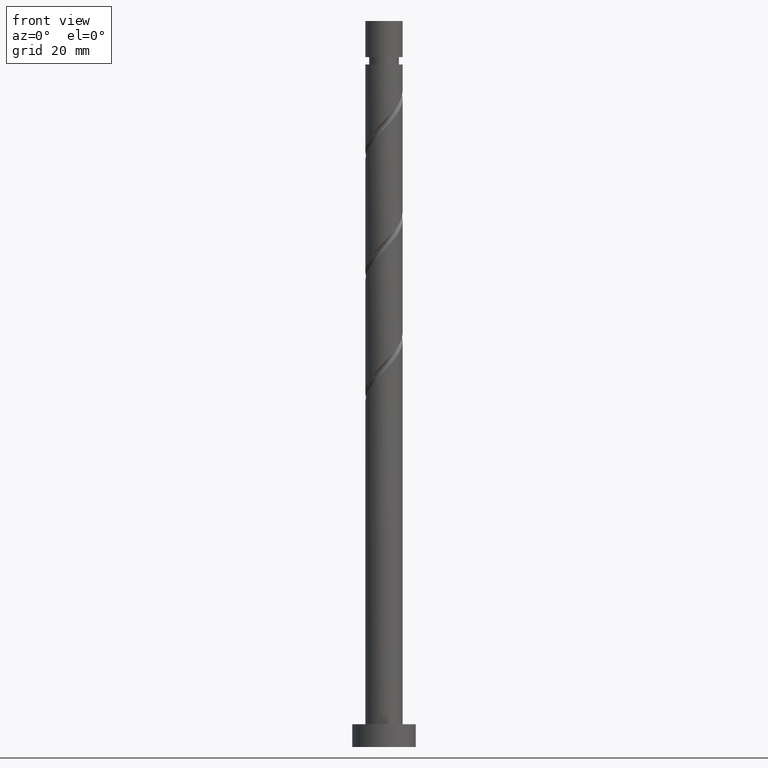
[diagram: clean part render]
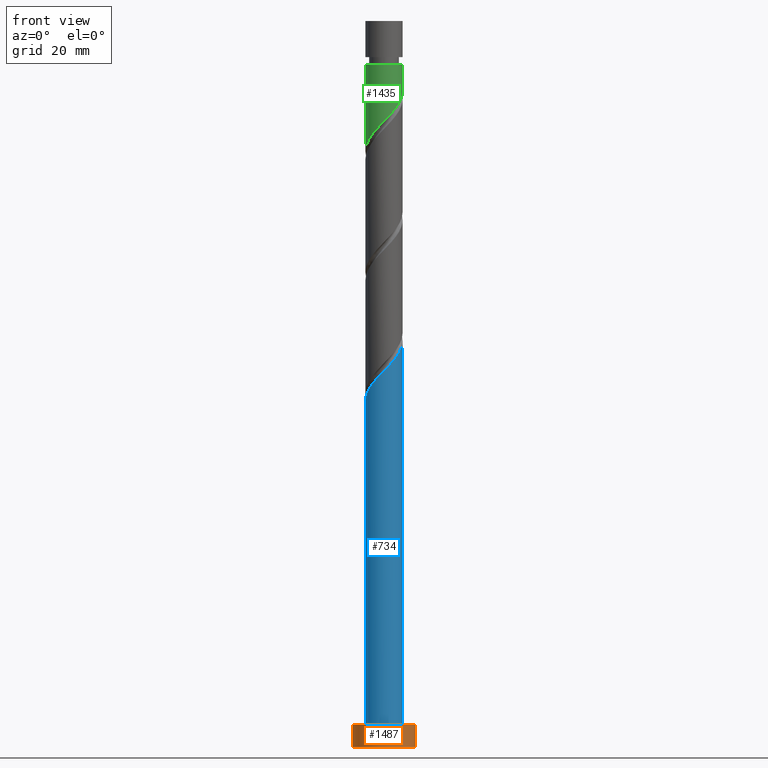
[diagram: same view with three faces highlighted in distinct colors, each labeled with its STEP entity id]
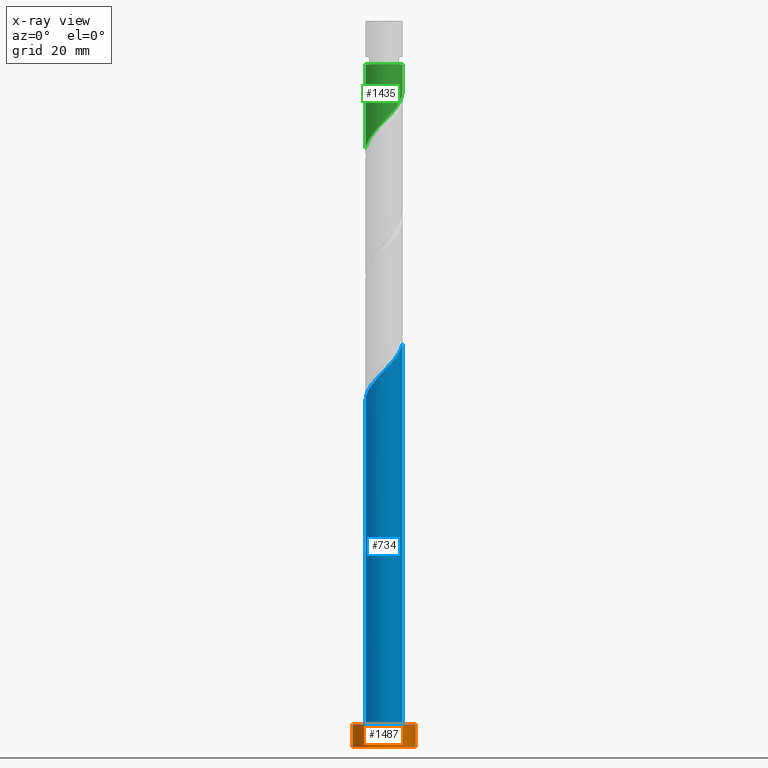
[diagram: x-ray of the same camera — body ghosted, the three highlighted faces saturated]
A machine part, front view with three faces highlighted in distinct colors.
The next image is the same camera in x-ray (body ghosted, the three faces saturated) — at least one of them is partly hidden behind the body in this view.
Their STEP definitions:

[orange] entity #1487 — the highlighted cylindrical surface (edge-blend (fillet) strip) has radius 7 mm, axis along (-0, -0, -1).
#3 = DIRECTION ( 'NONE',  ( -1.000000000000000000, 0.000000000000000000, 0.000000000000000000 ) ) ;
#36 = EDGE_CURVE ( 'NONE', #504, #76, #1440, .T. ) ;
#62 = ORIENTED_EDGE ( 'NONE', *, *, #1180, .T. ) ;
#68 = AXIS2_PLACEMENT_3D ( 'NONE', #96, #224, #1641 ) ;
#76 = VERTEX_POINT ( 'NONE', #1046 ) ;
#96 = CARTESIAN_POINT ( 'NONE',  ( 0.000000000000000000, 0.000000000000000000, 0.000000000000000000 ) ) ;
#174 = EDGE_CURVE ( 'NONE', #629, #332, #1523, .T. ) ;
#201 = CARTESIAN_POINT ( 'NONE',  ( -7.000000000000000000, 0.000000000000000000, 5.000000000000000000 ) ) ;
#224 = DIRECTION ( 'NONE',  ( 0.000000000000000000, 0.000000000000000000, 1.000000000000000000 ) ) ;
#228 = CARTESIAN_POINT ( 'NONE',  ( -7.000000000000000000, 0.000000000000000000, 0.000000000000000000 ) ) ;
#298 = LINE ( 'NONE', #201, #926 ) ;
#332 = VERTEX_POINT ( 'NONE', #802 ) ;
#371 = ORIENTED_EDGE ( 'NONE', *, *, #36, .F. ) ;
#419 = CARTESIAN_POINT ( 'NONE',  ( 0.000000000000000000, 0.000000000000000000, 5.000000000000000000 ) ) ;
#504 = VERTEX_POINT ( 'NONE', #1193 ) ;
#519 = CYLINDRICAL_SURFACE ( 'NONE', #1267, 7.000000000000000000 ) ;
#552 = VECTOR ( 'NONE', #1154, 1000.000000000000000 ) ;
#629 = VERTEX_POINT ( 'NONE', #228 ) ;
#755 = CARTESIAN_POINT ( 'NONE',  ( 7.000000000000000000, 8.572527594031473190E-16, 5.000000000000000000 ) ) ;
#802 = CARTESIAN_POINT ( 'NONE',  ( 7.000000000000000000, 8.572527594031473190E-16, 0.000000000000000000 ) ) ;
#887 = FACE_OUTER_BOUND ( 'NONE', #981, .T. ) ;
#898 = LINE ( 'NONE', #755, #552 ) ;
#925 = CARTESIAN_POINT ( 'NONE',  ( 0.000000000000000000, 0.000000000000000000, 5.000000000000000000 ) ) ;
#926 = VECTOR ( 'NONE', #1460, 1000.000000000000000 ) ;
#931 = DIRECTION ( 'NONE',  ( 1.000000000000000000, 0.000000000000000000, 0.000000000000000000 ) ) ;
#981 = EDGE_LOOP ( 'NONE', ( #1496, #371, #62, #1194 ) ) ;
#1046 = CARTESIAN_POINT ( 'NONE',  ( 7.000000000000000000, 8.572527594031473190E-16, 5.000000000000000000 ) ) ;
#1053 = AXIS2_PLACEMENT_3D ( 'NONE', #419, #1448, #931 ) ;
#1154 = DIRECTION ( 'NONE',  ( -0.000000000000000000, -0.000000000000000000, -1.000000000000000000 ) ) ;
#1180 = EDGE_CURVE ( 'NONE', #504, #629, #298, .T. ) ;
#1193 = CARTESIAN_POINT ( 'NONE',  ( -7.000000000000000000, 0.000000000000000000, 5.000000000000000000 ) ) ;
#1194 = ORIENTED_EDGE ( 'NONE', *, *, #174, .T. ) ;
#1267 = AXIS2_PLACEMENT_3D ( 'NONE', #925, #1538, #3 ) ;
#1440 = CIRCLE ( 'NONE', #1053, 7.000000000000000000 ) ;
#1448 = DIRECTION ( 'NONE',  ( 0.000000000000000000, 0.000000000000000000, 1.000000000000000000 ) ) ;
#1460 = DIRECTION ( 'NONE',  ( -0.000000000000000000, -0.000000000000000000, -1.000000000000000000 ) ) ;
#1487 = ADVANCED_FACE ( 'NONE', ( #887 ), #519, .T. ) ;
#1496 = ORIENTED_EDGE ( 'NONE', *, *, #1561, .F. ) ;
#1523 = CIRCLE ( 'NONE', #68, 7.000000000000000000 ) ;
#1538 = DIRECTION ( 'NONE',  ( -0.000000000000000000, -0.000000000000000000, -1.000000000000000000 ) ) ;
#1561 = EDGE_CURVE ( 'NONE', #76, #332, #898, .T. ) ;
#1641 = DIRECTION ( 'NONE',  ( 1.000000000000000000, 0.000000000000000000, 0.000000000000000000 ) ) ;

[blue] entity #734 — the highlighted cylindrical surface (edge-blend (fillet) strip) has radius 4.1 mm, axis along (-0, -0, -1).
#11 =( BOUNDED_CURVE ( )  B_SPLINE_CURVE ( 2, ( #890, #1558, #910, #1176, #30, #544, #1574, #1406, #414, #800, #1312, #169, #1476, #431, #56, #1580, #589, #191, #963, #1469, #688, #177, #1341, #718, #551 ),
 .UNSPECIFIED., .F., .T. ) 
 B_SPLINE_CURVE_WITH_KNOTS ( ( 3, 2, 2, 2, 2, 2, 2, 2, 2, 2, 2, 2, 3 ),
 ( 0.05452521624175116211, 0.05681818181818176772, 0.06818181818181823228, 0.07954545454545458583, 0.09090909090909093937, 0.1022727272727272929, 0.1136363636363636465, 0.1250000000000000000, 0.1363636363636363535, 0.1477272727272727071, 0.1590909090909090606, 0.1704545454545454142, 0.1795252162417512731 ),
 .UNSPECIFIED. ) 
 CURVE ( )  GEOMETRIC_REPRESENTATION_ITEM ( )  RATIONAL_B_SPLINE_CURVE ( ( 0.9061101570135606798, 0.9072237824201428991, 0.9090909090909204959, 0.8998376744372229563, 0.9090909090909204959, 0.8998376744372229563, 0.9090909090909204959, 0.8998376744372229563, 0.9090909090909204959, 0.8998376744372229563, 0.9090909090909204959, 0.8998376744372229563, 0.9090909090909204959, 0.8998376744372229563, 0.9090909090909204959, 0.8998376744372229563, 0.9090909090909204959, 0.8998376744372229563, 0.9090909090909204959, 0.8998376744372229563, 0.9090909090909204959, 0.8998376744372229563, 0.9090909090909204959, 0.9017048011080004422, 0.9061101570135609018 ) ) 
 REPRESENTATION_ITEM ( '' )  );
#30 = CARTESIAN_POINT ( 'NONE',  ( -3.860989342997054319, -1.379406137895296647, 77.68101214099381480 ) ) ;
#56 = CARTESIAN_POINT ( 'NONE',  ( 0.8158896984274283115, -4.018000000000004235, 83.74161820159990555 ) ) ;
#91 = DIRECTION ( 'NONE',  ( -0.000000000000000000, -0.000000000000000000, -1.000000000000000000 ) ) ;
#162 = VERTEX_POINT ( 'NONE', #845 ) ;
#169 = CARTESIAN_POINT ( 'NONE',  ( -0.9365104741622179985, -4.034903688715220760, 81.92343638341807832 ) ) ;
#177 = CARTESIAN_POINT ( 'NONE',  ( 3.860554850343161259, -1.501204813779630332, 87.98404244402411223 ) ) ;
#189 = ORIENTED_EDGE ( 'NONE', *, *, #984, .F. ) ;
#191 = CARTESIAN_POINT ( 'NONE',  ( 2.436092808849637859, -3.350067383216988492, 85.55980001978171856 ) ) ;
#255 = DIRECTION ( 'NONE',  ( -1.000000000000000000, 0.000000000000000000, 0.000000000000000000 ) ) ;
#283 = CYLINDRICAL_SURFACE ( 'NONE', #495, 4.099999999999999645 ) ;
#321 = LINE ( 'NONE', #1333, #1527 ) ;
#412 = CIRCLE ( 'NONE', #1352, 4.099999999999999645 ) ;
#414 = CARTESIAN_POINT ( 'NONE',  ( -2.502307663024829765, -3.247838721298710762, 80.10525456523626531 ) ) ;
#431 = CARTESIAN_POINT ( 'NONE',  ( 0.2381885131556253921, -4.135307228927973533, 83.13555759553926805 ) ) ;
#449 = VERTEX_POINT ( 'NONE', #1454 ) ;
#458 = CARTESIAN_POINT ( 'NONE',  ( 4.099999999999999645, 5.021051876504147385E-16, 5.000000000000000000 ) ) ;
#468 = ORIENTED_EDGE ( 'NONE', *, *, #1125, .T. ) ;
#484 = LINE ( 'NONE', #1513, #791 ) ;
#495 = AXIS2_PLACEMENT_3D ( 'NONE', #1166, #919, #255 ) ;
#544 = CARTESIAN_POINT ( 'NONE',  ( -3.662660681764272397, -1.934532598764186373, 78.28707274705443808 ) ) ;
#551 = CARTESIAN_POINT ( 'NONE',  ( 4.100000000000004974, 2.348220850448935583E-15, 89.55883038896567427 ) ) ;
#589 = CARTESIAN_POINT ( 'NONE',  ( 1.914841846274433879, -3.625380077144512825, 84.95373941372108106 ) ) ;
#685 = EDGE_CURVE ( 'NONE', #162, #1028, #412, .T. ) ;
#688 = CARTESIAN_POINT ( 'NONE',  ( 3.570895916485996135, -2.014622136685605192, 87.37798183796353158 ) ) ;
#718 = CARTESIAN_POINT ( 'NONE',  ( 4.100000000000004086, -0.4695686022790059866, 89.07287043599436061 ) ) ;
#728 = CARTESIAN_POINT ( 'NONE',  ( 0.000000000000000000, 0.000000000000000000, 5.000000000000000000 ) ) ;
#733 = CARTESIAN_POINT ( 'NONE',  ( 4.100000000000004974, 2.348220850448935583E-15, 89.55883038896567427 ) ) ;
#734 = ADVANCED_FACE ( 'NONE', ( #1549 ), #283, .T. ) ;
#791 = VECTOR ( 'NONE', #91, 1000.000000000000000 ) ;
#800 = CARTESIAN_POINT ( 'NONE',  ( -2.035338952505686194, -3.607616248138969528, 80.71131517129684596 ) ) ;
#821 = ORIENTED_EDGE ( 'NONE', *, *, #685, .T. ) ;
#845 = CARTESIAN_POINT ( 'NONE',  ( -4.099999999999999645, 0.000000000000000000, 5.000000000000000000 ) ) ;
#890 = CARTESIAN_POINT ( 'NONE',  ( -4.100000000000004974, -2.497789057483899821E-15, 76.22549705563235989 ) ) ;
#910 = CARTESIAN_POINT ( 'NONE',  ( -4.093215763958131248, -0.2357640975311769138, 76.46889092887259665 ) ) ;
#919 = DIRECTION ( 'NONE',  ( -0.000000000000000000, -0.000000000000000000, -1.000000000000000000 ) ) ;
#963 = CARTESIAN_POINT ( 'NONE',  ( 2.858664895739234879, -2.939053421404283384, 86.16586062584231342 ) ) ;
#984 = EDGE_CURVE ( 'NONE', #449, #1353, #11, .T. ) ;
#990 = DIRECTION ( 'NONE',  ( 0.000000000000000000, 0.000000000000000000, 1.000000000000000000 ) ) ;
#1028 = VERTEX_POINT ( 'NONE', #458 ) ;
#1117 = DIRECTION ( 'NONE',  ( 1.000000000000000000, 0.000000000000000000, 0.000000000000000000 ) ) ;
#1125 = EDGE_CURVE ( 'NONE', #449, #162, #321, .T. ) ;
#1166 = CARTESIAN_POINT ( 'NONE',  ( 0.000000000000000000, 0.000000000000000000, 160.0000000000000000 ) ) ;
#1176 = CARTESIAN_POINT ( 'NONE',  ( -4.059318004229832688, -0.8242796770264076978, 77.07495153493323414 ) ) ;
#1259 = EDGE_LOOP ( 'NONE', ( #1313, #189, #468, #821 ) ) ;
#1312 = CARTESIAN_POINT ( 'NONE',  ( -1.485924713333952374, -3.821259968427094478, 81.31737577735746925 ) ) ;
#1313 = ORIENTED_EDGE ( 'NONE', *, *, #1330, .F. ) ;
#1330 = EDGE_CURVE ( 'NONE', #1353, #1028, #484, .T. ) ;
#1333 = CARTESIAN_POINT ( 'NONE',  ( -4.099999999999999645, 0.000000000000000000, 160.0000000000000000 ) ) ;
#1341 = CARTESIAN_POINT ( 'NONE',  ( 3.993834187014794868, -0.9269781478718425172, 88.59010305008473551 ) ) ;
#1347 = DIRECTION ( 'NONE',  ( -0.000000000000000000, -0.000000000000000000, -1.000000000000000000 ) ) ;
#1352 = AXIS2_PLACEMENT_3D ( 'NONE', #728, #990, #1117 ) ;
#1353 = VERTEX_POINT ( 'NONE', #733 ) ;
#1406 = CARTESIAN_POINT ( 'NONE',  ( -2.969276373543973335, -2.888061194458452885, 79.49919395917569886 ) ) ;
#1454 = CARTESIAN_POINT ( 'NONE',  ( -4.100000000000004974, -2.497789057483899821E-15, 76.22549705563234568 ) ) ;
#1469 = CARTESIAN_POINT ( 'NONE',  ( 3.281236982628831456, -2.528039459591578275, 86.77192123190292250 ) ) ;
#1476 = CARTESIAN_POINT ( 'NONE',  ( -0.3491609805032963032, -4.085105458821597146, 82.52949698947868740 ) ) ;
#1513 = CARTESIAN_POINT ( 'NONE',  ( 4.099999999999999645, 5.021051876504147385E-16, 160.0000000000000000 ) ) ;
#1527 = VECTOR ( 'NONE', #1347, 1000.000000000000000 ) ;
#1549 = FACE_OUTER_BOUND ( 'NONE', #1259, .T. ) ;
#1558 = CARTESIAN_POINT ( 'NONE',  ( -4.100000000000005862, -0.1179796587476645287, 76.34759506035055665 ) ) ;
#1574 = CARTESIAN_POINT ( 'NONE',  ( -3.315968527654123754, -2.411296896611319962, 78.89313335311503295 ) ) ;
#1580 = CARTESIAN_POINT ( 'NONE',  ( 1.393590883699231009, -3.900692771072035825, 84.34767880766050041 ) ) ;

[green] entity #1435 — the highlighted cylindrical surface (edge-blend (fillet) strip) has radius 4.1 mm, axis along (-0, -0, -1).
#7 = CARTESIAN_POINT ( 'NONE',  ( 4.100000000000000533, 1.435854787535663787E-15, 144.5910726809008224 ) ) ;
#113 = VERTEX_POINT ( 'NONE', #1118 ) ;
#116 = EDGE_CURVE ( 'NONE', #113, #1348, #481, .T. ) ;
#120 = DIRECTION ( 'NONE',  ( -0.000000000000000000, -0.000000000000000000, -1.000000000000000000 ) ) ;
#122 = AXIS2_PLACEMENT_3D ( 'NONE', #534, #120, #147 ) ;
#135 = CARTESIAN_POINT ( 'NONE',  ( 3.860989342997047213, -1.379406137895296425, 143.1355575955392965 ) ) ;
#147 = DIRECTION ( 'NONE',  ( -1.000000000000000000, 0.000000000000000000, 0.000000000000000000 ) ) ;
#153 = CARTESIAN_POINT ( 'NONE',  ( 0.9365104741622172213, -4.034903688715216319, 138.8931333531150756 ) ) ;
#172 = CARTESIAN_POINT ( 'NONE',  ( 0.3491609805032941383, -4.085105458821592705, 138.2870727470544239 ) ) ;
#215 = EDGE_CURVE ( 'NONE', #1553, #1348, #1452, .T. ) ;
#246 = DIRECTION ( 'NONE',  ( -1.000000000000000000, 0.000000000000000000, 0.000000000000000000 ) ) ;
#257 = CARTESIAN_POINT ( 'NONE',  ( 4.100000000000000533, -0.1179796587476745762, 144.4689746761825972 ) ) ;
#258 = ORIENTED_EDGE ( 'NONE', *, *, #1269, .T. ) ;
#286 = CARTESIAN_POINT ( 'NONE',  ( -1.914841846274432990, -3.625380077144507496, 135.8628303228119876 ) ) ;
#293 = CARTESIAN_POINT ( 'NONE',  ( 4.093215763958126807, -0.2357640975311781073, 144.3476788076605430 ) ) ;
#309 = VECTOR ( 'NONE', #617, 1000.000000000000000 ) ;
#346 = CARTESIAN_POINT ( 'NONE',  ( -4.099999999999999645, 0.000000000000000000, 160.0000000000000000 ) ) ;
#353 = LINE ( 'NONE', #983, #309 ) ;
#374 = CYLINDRICAL_SURFACE ( 'NONE', #122, 4.099999999999999645 ) ;
#418 = CARTESIAN_POINT ( 'NONE',  ( -2.858664895739232215, -2.939053421404278943, 134.6507091106908263 ) ) ;
#475 = CARTESIAN_POINT ( 'NONE',  ( -4.100000000000000533, -2.228566284820977997E-15, 131.2577393475674228 ) ) ;
#481 = LINE ( 'NONE', #346, #971 ) ;
#524 = CARTESIAN_POINT ( 'NONE',  ( -3.993834187014790871, -0.9269781478718408518, 132.2264666864483900 ) ) ;
#534 = CARTESIAN_POINT ( 'NONE',  ( 0.000000000000000000, 0.000000000000000000, 160.0000000000000000 ) ) ;
#539 = CARTESIAN_POINT ( 'NONE',  ( -2.436092808849634750, -3.350067383216984940, 135.2567697167514211 ) ) ;
#603 = ORIENTED_EDGE ( 'NONE', *, *, #215, .F. ) ;
#617 = DIRECTION ( 'NONE',  ( -0.000000000000000000, -0.000000000000000000, -1.000000000000000000 ) ) ;
#634 = EDGE_CURVE ( 'NONE', #1407, #1553, #353, .T. ) ;
#651 = CARTESIAN_POINT ( 'NONE',  ( 2.969276373543970671, -2.888061194458449776, 141.3173757773574835 ) ) ;
#665 = AXIS2_PLACEMENT_3D ( 'NONE', #1365, #864, #246 ) ;
#675 = CARTESIAN_POINT ( 'NONE',  ( 3.315968527654118869, -2.411296896611316853, 141.9234363834180783 ) ) ;
#683 = CARTESIAN_POINT ( 'NONE',  ( -4.099999999999999645, -0.4695686022789989367, 131.7436993005387365 ) ) ;
#723 = DIRECTION ( 'NONE',  ( -0.000000000000000000, -0.000000000000000000, -1.000000000000000000 ) ) ;
#768 = CARTESIAN_POINT ( 'NONE',  ( -4.100000000000000533, -2.228566284820977997E-15, 131.2577393475674228 ) ) ;
#795 = CARTESIAN_POINT ( 'NONE',  ( 4.059318004229828247, -0.8242796770264084749, 143.7416182015999198 ) ) ;
#832 = ORIENTED_EDGE ( 'NONE', *, *, #634, .F. ) ;
#864 = DIRECTION ( 'NONE',  ( -0.000000000000000000, -0.000000000000000000, -1.000000000000000000 ) ) ;
#908 = CARTESIAN_POINT ( 'NONE',  ( 4.099999999999993427, 5.021051876504144427E-16, 150.4082848682665770 ) ) ;
#971 = VECTOR ( 'NONE', #723, 1000.000000000000000 ) ;
#983 = CARTESIAN_POINT ( 'NONE',  ( 4.099999999999999645, 5.021051876504147385E-16, 160.0000000000000000 ) ) ;
#1027 = CIRCLE ( 'NONE', #665, 4.099999999999993427 ) ;
#1042 = CARTESIAN_POINT ( 'NONE',  ( 3.662660681764268400, -1.934532598764185041, 142.5294969894787016 ) ) ;
#1052 = CARTESIAN_POINT ( 'NONE',  ( 1.485924713333949043, -3.821259968427091369, 139.4991939591756420 ) ) ;
#1118 = CARTESIAN_POINT ( 'NONE',  ( -4.099999999999993427, 0.000000000000000000, 150.4082848682665770 ) ) ;
#1142 = ORIENTED_EDGE ( 'NONE', *, *, #116, .T. ) ;
#1178 = CARTESIAN_POINT ( 'NONE',  ( -3.570895916485992139, -2.014622136685600751, 133.4385878985696081 ) ) ;
#1269 = EDGE_CURVE ( 'NONE', #1407, #113, #1027, .T. ) ;
#1272 = CARTESIAN_POINT ( 'NONE',  ( 4.100000000000000533, 1.435854787535663984E-15, 144.5910726809008224 ) ) ;
#1316 = CARTESIAN_POINT ( 'NONE',  ( 2.035338952505681753, -3.607616248138966419, 140.1052545652362937 ) ) ;
#1348 = VERTEX_POINT ( 'NONE', #475 ) ;
#1365 = CARTESIAN_POINT ( 'NONE',  ( 0.000000000000000000, 0.000000000000000000, 150.4082848682665770 ) ) ;
#1391 = EDGE_LOOP ( 'NONE', ( #832, #258, #1142, #603 ) ) ;
#1407 = VERTEX_POINT ( 'NONE', #908 ) ;
#1420 = CARTESIAN_POINT ( 'NONE',  ( -3.281236982628828791, -2.528039459591573834, 134.0446485046302314 ) ) ;
#1426 = FACE_OUTER_BOUND ( 'NONE', #1391, .T. ) ;
#1435 = ADVANCED_FACE ( 'NONE', ( #1426 ), #374, .T. ) ;
#1452 =( BOUNDED_CURVE ( )  B_SPLINE_CURVE ( 2, ( #7, #257, #293, #795, #135, #1042, #675, #651, #1583, #1316, #1052, #153, #172, #1552, #1568, #1576, #286, #539, #418, #1420, #1178, #1560, #524, #683, #768 ),
 .UNSPECIFIED., .F., .T. ) 
 B_SPLINE_CURVE_WITH_KNOTS ( ( 3, 2, 2, 2, 2, 2, 2, 2, 2, 2, 2, 2, 3 ),
 ( 0.3045252162417513841, 0.3068181818181818232, 0.3181818181818181768, 0.3295454545454545303, 0.3409090909090908839, 0.3522727272727272929, 0.3636363636363636465, 0.3750000000000000000, 0.3863636363636363535, 0.3977272727272727071, 0.4090909090909091161, 0.4204545454545454697, 0.4295252162417514397 ),
 .UNSPECIFIED. ) 
 CURVE ( )  GEOMETRIC_REPRESENTATION_ITEM ( )  RATIONAL_B_SPLINE_CURVE ( ( 0.9061101570135554617, 0.9072237824201375700, 0.9090909090909150558, 0.8998376744372174052, 0.9090909090909150558, 0.8998376744372174052, 0.9090909090909150558, 0.8998376744372174052, 0.9090909090909150558, 0.8998376744372174052, 0.9090909090909150558, 0.8998376744372174052, 0.9090909090909150558, 0.8998376744372174052, 0.9090909090909150558, 0.8998376744372174052, 0.9090909090909150558, 0.8998376744372174052, 0.9090909090909150558, 0.8998376744372174052, 0.9090909090909150558, 0.8998376744372174052, 0.9090909090909150558, 0.9017048011079948910, 0.9061101570135554617 ) ) 
 REPRESENTATION_ITEM ( '' )  );
#1552 = CARTESIAN_POINT ( 'NONE',  ( -0.2381885131556268631, -4.135307228927969980, 137.6810121409938859 ) ) ;
#1553 = VERTEX_POINT ( 'NONE', #1272 ) ;
#1560 = CARTESIAN_POINT ( 'NONE',  ( -3.860554850343155486, -1.501204813779628777, 132.8325272925089848 ) ) ;
#1568 = CARTESIAN_POINT ( 'NONE',  ( -0.8158896984274290887, -4.017999999999998906, 137.0749515349332057 ) ) ;
#1576 = CARTESIAN_POINT ( 'NONE',  ( -1.393590883699231231, -3.900692771072030052, 136.4688909288726677 ) ) ;
#1583 = CARTESIAN_POINT ( 'NONE',  ( 2.502307663024826212, -3.247838721298708098, 140.7113151712968317 ) ) ;